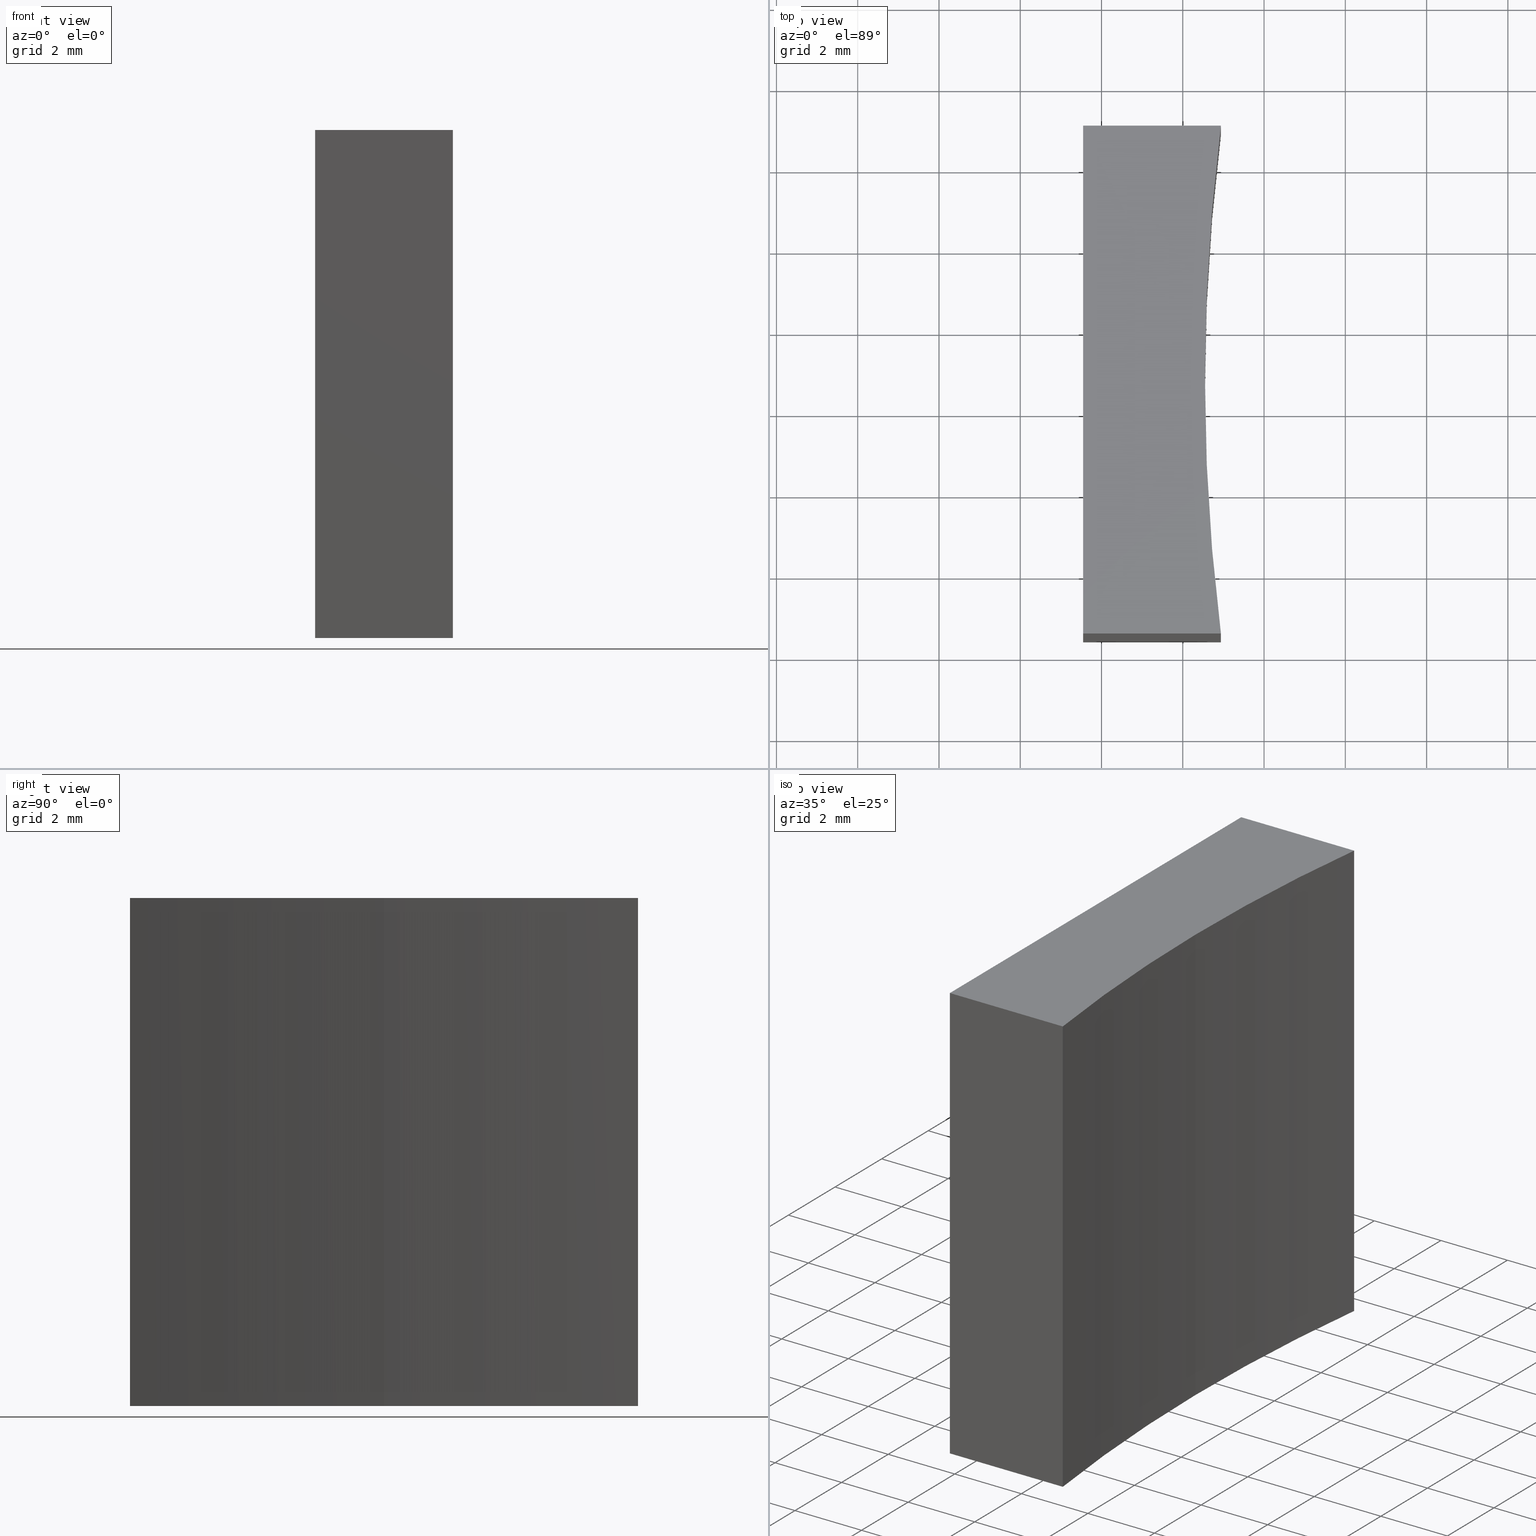
[diagram: canonical four-view strip — front | top / right | iso, engineering-drawing reading convention]
A machine part, canonical four-view strip (front | top / right | iso — engineering-drawing reading convention). The complete STEP part file that produces these views, byte-faithful:
ISO-10303-21;
HEADER;
FILE_DESCRIPTION (( 'STEP AP214' ),
    '1' );
FILE_NAME ('270014.STEP',
    '2019-07-22T03:13:36',
    ( '' ),
    ( '' ),
    'SwSTEP 2.0',
    'SolidWorks 2016',
    '' );
FILE_SCHEMA (( 'AUTOMOTIVE_DESIGN' ));
ENDSEC;

DATA;
#1 = APPLICATION_PROTOCOL_DEFINITION ( 'draft international standard', 'automotive_design', 1998, #104 ) ;
#2 =( LENGTH_UNIT ( ) NAMED_UNIT ( * ) SI_UNIT ( .MILLI., .METRE. ) );
#3 = PRESENTATION_LAYER_ASSIGNMENT (  '', '', ( #61 ) ) ;
#4 = VECTOR ( 'NONE', #154, 1000.000000000000000 ) ;
#5 = ORIENTED_EDGE ( 'NONE', *, *, #158, .T. ) ;
#6 = ADVANCED_BREP_SHAPE_REPRESENTATION ( '270014', ( #72, #127 ), #39 ) ;
#7 = ORIENTED_EDGE ( 'NONE', *, *, #136, .F. ) ;
#8 = CIRCLE ( 'NONE', #95, 49.99999999999998600 ) ;
#9 = EDGE_LOOP ( 'NONE', ( #134, #156, #152, #59, #146 ) ) ;
#10 = PRODUCT_DEFINITION ( 'δ֪', '', #42, #13 ) ;
#11 = ORIENTED_EDGE ( 'NONE', *, *, #191, .T. ) ;
#12 = PLANE ( 'NONE',  #52 ) ;
#13 = PRODUCT_DEFINITION_CONTEXT ( 'detailed design', #104, 'design' ) ;
#14 = CARTESIAN_POINT ( 'NONE',  ( 60.93849051950596200, 40.93901056168622400, 12.50000000000000000 ) ) ;
#15 = DIRECTION ( 'NONE',  ( 0.0000000000000000000, -1.000000000000000000, 0.0000000000000000000 ) ) ;
#16 =( NAMED_UNIT ( * ) SI_UNIT ( $, .STERADIAN. ) SOLID_ANGLE_UNIT ( ) );
#17 = VECTOR ( 'NONE', #94, 1000.000000000000000 ) ;
#18 = EDGE_LOOP ( 'NONE', ( #110, #75, #194, #60, #97 ) ) ;
#19 = AXIS2_PLACEMENT_3D ( 'NONE', #68, #20, #163 ) ;
#20 = DIRECTION ( 'NONE',  ( -0.0000000000000000000, -0.0000000000000000000, -1.000000000000000000 ) ) ;
#21 = DIRECTION ( 'NONE',  ( -0.0000000000000000000, -0.0000000000000000000, -1.000000000000000000 ) ) ;
#22 = VERTEX_POINT ( 'NONE', #175 ) ;
#23 = SURFACE_STYLE_USAGE ( .BOTH. , #187 ) ;
#24 = MECHANICAL_DESIGN_GEOMETRIC_PRESENTATION_REPRESENTATION (  '', ( #171 ), #186 ) ;
#25 = ORIENTED_EDGE ( 'NONE', *, *, #205, .F. ) ;
#26 = VECTOR ( 'NONE', #233, 1000.000000000000000 ) ;
#27 = PRESENTATION_LAYER_ASSIGNMENT (  '', '', ( #171 ) ) ;
#28 = DIRECTION ( 'NONE',  ( 1.000000000000000000, 2.045566327771736600E-015, 0.0000000000000000000 ) ) ;
#29 = CARTESIAN_POINT ( 'NONE',  ( 57.54632776745975800, 40.93901056168621700, 0.0000000000000000000 ) ) ;
#30 = VERTEX_POINT ( 'NONE', #174 ) ;
#31 = EDGE_CURVE ( 'NONE', #30, #111, #107, .T. ) ;
#32 = EDGE_CURVE ( 'NONE', #199, #161, #126, .T. ) ;
#33 = COLOUR_RGB ( '',1.000000000000000000, 1.000000000000000000, 1.000000000000000000 ) ;
#34 = SURFACE_SIDE_STYLE ('',( #225 ) ) ;
#35 = CARTESIAN_POINT ( 'NONE',  ( 110.5463276019670400, 34.68901056168623100, 0.0000000000000000000 ) ) ;
#36 = CARTESIAN_POINT ( 'NONE',  ( 57.54632776745975800, 28.43901056168622100, 12.50000000000000000 ) ) ;
#37 = DIRECTION ( 'NONE',  ( -0.0000000000000000000, -0.0000000000000000000, -1.000000000000000000 ) ) ;
#38 = ADVANCED_FACE ( 'NONE', ( #148 ), #12, .F. ) ;
#39 =( GEOMETRIC_REPRESENTATION_CONTEXT ( 3 ) GLOBAL_UNCERTAINTY_ASSIGNED_CONTEXT ( ( #238 ) ) GLOBAL_UNIT_ASSIGNED_CONTEXT ( ( #2, #125, #218 ) ) REPRESENTATION_CONTEXT ( 'NONE', 'WORKASPACE' ) );
#40 = DIRECTION ( 'NONE',  ( -0.0000000000000000000, -0.0000000000000000000, -1.000000000000000000 ) ) ;
#41 = VECTOR ( 'NONE', #40, 1000.000000000000000 ) ;
#42 = PRODUCT_DEFINITION_FORMATION_WITH_SPECIFIED_SOURCE ( '�κ�', '', #207, .NOT_KNOWN. ) ;
#43 = EDGE_LOOP ( 'NONE', ( #236, #100, #211, #209 ) ) ;
#44 = AXIS2_PLACEMENT_3D ( 'NONE', #56, #89, #167 ) ;
#45 = DIRECTION ( 'NONE',  ( 1.000000000000000000, 0.0000000000000000000, 0.0000000000000000000 ) ) ;
#46 = VECTOR ( 'NONE', #177, 1000.000000000000000 ) ;
#47 = DIRECTION ( 'NONE',  ( 1.000000000000000000, 0.0000000000000000000, 0.0000000000000000000 ) ) ;
#48 = DIRECTION ( 'NONE',  ( -0.0000000000000000000, -0.0000000000000000000, -1.000000000000000000 ) ) ;
#49 = CARTESIAN_POINT ( 'NONE',  ( 60.54632760196703600, 34.68901056168623100, 0.0000000000000000000 ) ) ;
#50 =( LENGTH_UNIT ( ) NAMED_UNIT ( * ) SI_UNIT ( .MILLI., .METRE. ) );
#51 = ADVANCED_FACE ( 'NONE', ( #118 ), #153, .F. ) ;
#52 = AXIS2_PLACEMENT_3D ( 'NONE', #227, #47, #132 ) ;
#53 = LINE ( 'NONE', #102, #169 ) ;
#54 = VERTEX_POINT ( 'NONE', #62 ) ;
#55 = CARTESIAN_POINT ( 'NONE',  ( 57.54632776745975800, 28.43901056168622100, 12.50000000000000000 ) ) ;
#56 = CARTESIAN_POINT ( 'NONE',  ( 110.5463276019670400, 34.68901056168623100, 12.50000000000000000 ) ) ;
#57 = DIRECTION ( 'NONE',  ( 1.000000000000000000, 0.0000000000000000000, 0.0000000000000000000 ) ) ;
#58 = CYLINDRICAL_SURFACE ( 'NONE', #74, 49.99999999999999300 ) ;
#59 = ORIENTED_EDGE ( 'NONE', *, *, #122, .F. ) ;
#60 = ORIENTED_EDGE ( 'NONE', *, *, #77, .T. ) ;
#61 = STYLED_ITEM ( 'NONE', ( #109 ), #72 ) ;
#62 = CARTESIAN_POINT ( 'NONE',  ( 57.54632776745975800, 40.93901056168621700, 12.50000000000000000 ) ) ;
#63 = ORIENTED_EDGE ( 'NONE', *, *, #178, .T. ) ;
#64 = DIRECTION ( 'NONE',  ( 1.000000000000000000, 0.0000000000000000000, 0.0000000000000000000 ) ) ;
#65 = EDGE_CURVE ( 'NONE', #22, #123, #121, .T. ) ;
#66 = LINE ( 'NONE', #116, #160 ) ;
#67 = ORIENTED_EDGE ( 'NONE', *, *, #31, .F. ) ;
#68 = CARTESIAN_POINT ( 'NONE',  ( 110.5463276019670400, 34.68901056168623100, 0.0000000000000000000 ) ) ;
#69 = SURFACE_STYLE_USAGE ( .BOTH. , #34 ) ;
#70 = ORIENTED_EDGE ( 'NONE', *, *, #180, .T. ) ;
#71 = FILL_AREA_STYLE ('',( #147 ) ) ;
#72 = MANIFOLD_SOLID_BREP ( '͹̨-����1', #210 ) ;
#73 = DIRECTION ( 'NONE',  ( 1.000000000000000000, 0.0000000000000000000, -0.0000000000000000000 ) ) ;
#74 = AXIS2_PLACEMENT_3D ( 'NONE', #185, #21, #108 ) ;
#75 = ORIENTED_EDGE ( 'NONE', *, *, #31, .T. ) ;
#76 = SHAPE_DEFINITION_REPRESENTATION ( #131, #6 ) ;
#77 = EDGE_CURVE ( 'NONE', #92, #181, #8, .T. ) ;
#78 = FACE_OUTER_BOUND ( 'NONE', #43, .T. ) ;
#79 = UNCERTAINTY_MEASURE_WITH_UNIT (LENGTH_MEASURE( 1.000000000000000100E-005 ), #50, 'distance_accuracy_value', 'NONE');
#80 = VECTOR ( 'NONE', #215, 1000.000000000000000 ) ;
#81 = AXIS2_PLACEMENT_3D ( 'NONE', #55, #84, #162 ) ;
#82 = CARTESIAN_POINT ( 'NONE',  ( 60.93849051950595500, 28.43901056168625600, 12.50000000000000000 ) ) ;
#83 = CARTESIAN_POINT ( 'NONE',  ( 60.93849051950595500, 28.43901056168625600, 0.0000000000000000000 ) ) ;
#84 = DIRECTION ( 'NONE',  ( -5.113915819429341200E-015, 1.000000000000000000, 0.0000000000000000000 ) ) ;
#85 = CARTESIAN_POINT ( 'NONE',  ( 110.5463276019670400, 34.68901056168623100, 12.50000000000000000 ) ) ;
#86 = LINE ( 'NONE', #139, #228 ) ;
#87 = ORIENTED_EDGE ( 'NONE', *, *, #193, .F. ) ;
#88 = APPLICATION_PROTOCOL_DEFINITION ( 'draft international standard', 'automotive_design', 1998, #183 ) ;
#89 = DIRECTION ( 'NONE',  ( -0.0000000000000000000, -0.0000000000000000000, -1.000000000000000000 ) ) ;
#90 = EDGE_CURVE ( 'NONE', #181, #54, #53, .T. ) ;
#91 = ORIENTED_EDGE ( 'NONE', *, *, #178, .F. ) ;
#92 = VERTEX_POINT ( 'NONE', #120 ) ;
#93 = ORIENTED_EDGE ( 'NONE', *, *, #136, .T. ) ;
#94 = DIRECTION ( 'NONE',  ( 1.000000000000000000, 5.113915819429341200E-015, 0.0000000000000000000 ) ) ;
#95 = AXIS2_PLACEMENT_3D ( 'NONE', #85, #159, #64 ) ;
#96 = CARTESIAN_POINT ( 'NONE',  ( 57.54632776745975800, 28.43901056168622100, 12.50000000000000000 ) ) ;
#97 = ORIENTED_EDGE ( 'NONE', *, *, #90, .T. ) ;
#98 = DIRECTION ( 'NONE',  ( 0.0000000000000000000, 0.0000000000000000000, 1.000000000000000000 ) ) ;
#99 = AXIS2_PLACEMENT_3D ( 'NONE', #172, #113, #28 ) ;
#100 = ORIENTED_EDGE ( 'NONE', *, *, #229, .F. ) ;
#101 = CARTESIAN_POINT ( 'NONE',  ( 60.93849051950595500, 28.43901056168625600, 12.50000000000000000 ) ) ;
#102 = CARTESIAN_POINT ( 'NONE',  ( 57.54632776745975800, 40.93901056168621700, 12.50000000000000000 ) ) ;
#103 =( NAMED_UNIT ( * ) PLANE_ANGLE_UNIT ( ) SI_UNIT ( $, .RADIAN. ) );
#104 = APPLICATION_CONTEXT ( 'automotive_design' ) ;
#105 = ADVANCED_FACE ( 'NONE', ( #192 ), #200, .F. ) ;
#106 = CYLINDRICAL_SURFACE ( 'NONE', #140, 49.99999999999999300 ) ;
#107 = LINE ( 'NONE', #96, #17 ) ;
#108 = DIRECTION ( 'NONE',  ( -1.000000000000000000, 0.0000000000000000000, 0.0000000000000000000 ) ) ;
#109 = PRESENTATION_STYLE_ASSIGNMENT (( #69 ) ) ;
#110 = ORIENTED_EDGE ( 'NONE', *, *, #166, .T. ) ;
#111 = VERTEX_POINT ( 'NONE', #101 ) ;
#112 = COLOUR_RGB ( '',1.000000000000000000, 1.000000000000000000, 1.000000000000000000 ) ;
#113 = DIRECTION ( 'NONE',  ( 2.045566327771736600E-015, -1.000000000000000000, 0.0000000000000000000 ) ) ;
#114 = EDGE_LOOP ( 'NONE', ( #165, #11, #173, #7 ) ) ;
#115 = PRODUCT_RELATED_PRODUCT_CATEGORY ( 'part', '', ( #207 ) ) ;
#116 = CARTESIAN_POINT ( 'NONE',  ( 57.54632776745975800, 28.43901056168622100, 0.0000000000000000000 ) ) ;
#117 = DIRECTION ( 'NONE',  ( 1.000000000000000000, 0.0000000000000000000, -0.0000000000000000000 ) ) ;
#118 = FACE_OUTER_BOUND ( 'NONE', #151, .T. ) ;
#119 = CARTESIAN_POINT ( 'NONE',  ( 60.93849051950596200, 40.93901056168622400, 12.50000000000000000 ) ) ;
#120 = CARTESIAN_POINT ( 'NONE',  ( 60.54632760196703600, 34.68901056168623100, 12.50000000000000000 ) ) ;
#121 = LINE ( 'NONE', #29, #4 ) ;
#122 = EDGE_CURVE ( 'NONE', #161, #22, #208, .T. ) ;
#123 = VERTEX_POINT ( 'NONE', #216 ) ;
#124 = DIRECTION ( 'NONE',  ( 0.0000000000000000000, 0.0000000000000000000, 1.000000000000000000 ) ) ;
#125 =( NAMED_UNIT ( * ) PLANE_ANGLE_UNIT ( ) SI_UNIT ( $, .RADIAN. ) );
#126 = CIRCLE ( 'NONE', #226, 49.99999999999998600 ) ;
#127 = AXIS2_PLACEMENT_3D ( 'NONE', #164, #203, #57 ) ;
#128 = LINE ( 'NONE', #82, #80 ) ;
#129 = AXIS2_PLACEMENT_3D ( 'NONE', #213, #98, #117 ) ;
#130 = FACE_OUTER_BOUND ( 'NONE', #9, .T. ) ;
#131 = PRODUCT_DEFINITION_SHAPE ( 'NONE', 'NONE',  #10 ) ;
#132 = DIRECTION ( 'NONE',  ( 0.0000000000000000000, 0.0000000000000000000, -1.000000000000000000 ) ) ;
#133 = LINE ( 'NONE', #36, #46 ) ;
#134 = ORIENTED_EDGE ( 'NONE', *, *, #180, .F. ) ;
#135 = AXIS2_PLACEMENT_3D ( 'NONE', #35, #124, #73 ) ;
#136 = EDGE_CURVE ( 'NONE', #181, #22, #214, .T. ) ;
#137 = LINE ( 'NONE', #206, #41 ) ;
#138 = DIRECTION ( 'NONE',  ( 1.000000000000000000, 5.113915819429341200E-015, 0.0000000000000000000 ) ) ;
#139 = CARTESIAN_POINT ( 'NONE',  ( 60.54632760196703600, 34.68901056168623100, 12.50000000000000000 ) ) ;
#140 = AXIS2_PLACEMENT_3D ( 'NONE', #220, #204, #144 ) ;
#141 = CARTESIAN_POINT ( 'NONE',  ( 57.54632776745975800, 34.68901056168621700, 0.0000000000000000000 ) ) ;
#142 = VECTOR ( 'NONE', #15, 1000.000000000000000 ) ;
#143 = FILL_AREA_STYLE_COLOUR ( '', #112 ) ;
#144 = DIRECTION ( 'NONE',  ( -1.000000000000000000, 0.0000000000000000000, 0.0000000000000000000 ) ) ;
#145 = MECHANICAL_DESIGN_GEOMETRIC_PRESENTATION_REPRESENTATION (  '', ( #61 ), #224 ) ;
#146 = ORIENTED_EDGE ( 'NONE', *, *, #32, .F. ) ;
#147 = FILL_AREA_STYLE_COLOUR ( '', #33 ) ;
#148 = FACE_OUTER_BOUND ( 'NONE', #198, .T. ) ;
#149 = ORIENTED_EDGE ( 'NONE', *, *, #166, .F. ) ;
#150 = VERTEX_POINT ( 'NONE', #182 ) ;
#151 = EDGE_LOOP ( 'NONE', ( #170, #25, #223, #93 ) ) ;
#152 = ORIENTED_EDGE ( 'NONE', *, *, #65, .F. ) ;
#153 = PLANE ( 'NONE',  #99 ) ;
#154 = DIRECTION ( 'NONE',  ( -1.000000000000000000, -2.045566327771736600E-015, -0.0000000000000000000 ) ) ;
#155 = UNCERTAINTY_MEASURE_WITH_UNIT (LENGTH_MEASURE( 1.000000000000000100E-005 ), #221, 'distance_accuracy_value', 'NONE');
#156 = ORIENTED_EDGE ( 'NONE', *, *, #158, .F. ) ;
#157 = CARTESIAN_POINT ( 'NONE',  ( 110.5463276019670400, 34.68901056168623100, 0.0000000000000000000 ) ) ;
#158 = EDGE_CURVE ( 'NONE', #123, #150, #168, .T. ) ;
#159 = DIRECTION ( 'NONE',  ( -0.0000000000000000000, -0.0000000000000000000, -1.000000000000000000 ) ) ;
#160 = VECTOR ( 'NONE', #138, 1000.000000000000000 ) ;
#161 = VERTEX_POINT ( 'NONE', #49 ) ;
#162 = DIRECTION ( 'NONE',  ( -1.000000000000000000, -5.113915819429341200E-015, 0.0000000000000000000 ) ) ;
#163 = DIRECTION ( 'NONE',  ( 1.000000000000000000, 0.0000000000000000000, 0.0000000000000000000 ) ) ;
#164 = CARTESIAN_POINT ( 'NONE',  ( 0.0000000000000000000, 0.0000000000000000000, 0.0000000000000000000 ) ) ;
#165 = ORIENTED_EDGE ( 'NONE', *, *, #77, .F. ) ;
#166 = EDGE_CURVE ( 'NONE', #54, #30, #188, .T. ) ;
#167 = DIRECTION ( 'NONE',  ( 1.000000000000000000, 0.0000000000000000000, 0.0000000000000000000 ) ) ;
#168 = LINE ( 'NONE', #141, #26 ) ;
#169 = VECTOR ( 'NONE', #179, 1000.000000000000000 ) ;
#170 = ORIENTED_EDGE ( 'NONE', *, *, #65, .T. ) ;
#171 = STYLED_ITEM ( 'NONE', ( #195 ), #6 ) ;
#172 = CARTESIAN_POINT ( 'NONE',  ( 57.54632776745975800, 40.93901056168621700, 12.50000000000000000 ) ) ;
#173 = ORIENTED_EDGE ( 'NONE', *, *, #122, .T. ) ;
#174 = CARTESIAN_POINT ( 'NONE',  ( 57.54632776745975800, 28.43901056168622100, 12.50000000000000000 ) ) ;
#175 = CARTESIAN_POINT ( 'NONE',  ( 60.93849051950596200, 40.93901056168622400, 0.0000000000000000000 ) ) ;
#176 = FACE_OUTER_BOUND ( 'NONE', #114, .T. ) ;
#177 = DIRECTION ( 'NONE',  ( -0.0000000000000000000, -0.0000000000000000000, -1.000000000000000000 ) ) ;
#178 = EDGE_CURVE ( 'NONE', #30, #150, #133, .T. ) ;
#179 = DIRECTION ( 'NONE',  ( -1.000000000000000000, -2.045566327771736600E-015, -0.0000000000000000000 ) ) ;
#180 = EDGE_CURVE ( 'NONE', #150, #199, #66, .T. ) ;
#181 = VERTEX_POINT ( 'NONE', #14 ) ;
#182 = CARTESIAN_POINT ( 'NONE',  ( 57.54632776745975800, 28.43901056168622100, 0.0000000000000000000 ) ) ;
#183 = APPLICATION_CONTEXT ( 'automotive_design' ) ;
#184 = ADVANCED_FACE ( 'NONE', ( #235 ), #230, .T. ) ;
#185 = CARTESIAN_POINT ( 'NONE',  ( 110.5463276019670400, 34.68901056168623100, 12.50000000000000000 ) ) ;
#186 =( GEOMETRIC_REPRESENTATION_CONTEXT ( 3 ) GLOBAL_UNCERTAINTY_ASSIGNED_CONTEXT ( ( #155 ) ) GLOBAL_UNIT_ASSIGNED_CONTEXT ( ( #221, #103, #239 ) ) REPRESENTATION_CONTEXT ( 'NONE', 'WORKASPACE' ) );
#187 = SURFACE_SIDE_STYLE ('',( #222 ) ) ;
#188 = LINE ( 'NONE', #202, #142 ) ;
#189 = VECTOR ( 'NONE', #37, 1000.000000000000000 ) ;
#190 = ORIENTED_EDGE ( 'NONE', *, *, #205, .T. ) ;
#191 = EDGE_CURVE ( 'NONE', #92, #161, #86, .T. ) ;
#192 = FACE_OUTER_BOUND ( 'NONE', #196, .T. ) ;
#193 = EDGE_CURVE ( 'NONE', #111, #199, #128, .T. ) ;
#194 = ORIENTED_EDGE ( 'NONE', *, *, #229, .T. ) ;
#195 = PRESENTATION_STYLE_ASSIGNMENT (( #23 ) ) ;
#196 = EDGE_LOOP ( 'NONE', ( #70, #87, #67, #63 ) ) ;
#197 = DIRECTION ( 'NONE',  ( -0.0000000000000000000, -0.0000000000000000000, -1.000000000000000000 ) ) ;
#198 = EDGE_LOOP ( 'NONE', ( #5, #91, #149, #190 ) ) ;
#199 = VERTEX_POINT ( 'NONE', #83 ) ;
#200 = PLANE ( 'NONE',  #81 ) ;
#201 = ADVANCED_FACE ( 'NONE', ( #130 ), #231, .F. ) ;
#202 = CARTESIAN_POINT ( 'NONE',  ( 57.54632776745975800, 34.68901056168621700, 12.50000000000000000 ) ) ;
#203 = DIRECTION ( 'NONE',  ( 0.0000000000000000000, 0.0000000000000000000, 1.000000000000000000 ) ) ;
#204 = DIRECTION ( 'NONE',  ( -0.0000000000000000000, -0.0000000000000000000, -1.000000000000000000 ) ) ;
#205 = EDGE_CURVE ( 'NONE', #54, #123, #137, .T. ) ;
#206 = CARTESIAN_POINT ( 'NONE',  ( 57.54632776745975800, 40.93901056168621700, 12.50000000000000000 ) ) ;
#207 = PRODUCT ( '270014', '270014', '', ( #219 ) ) ;
#208 = CIRCLE ( 'NONE', #19, 49.99999999999998600 ) ;
#209 = ORIENTED_EDGE ( 'NONE', *, *, #32, .T. ) ;
#210 = CLOSED_SHELL ( 'NONE', ( #232, #105, #234, #51, #38, #184, #201 ) ) ;
#211 = ORIENTED_EDGE ( 'NONE', *, *, #193, .T. ) ;
#212 = CIRCLE ( 'NONE', #44, 49.99999999999998600 ) ;
#213 = CARTESIAN_POINT ( 'NONE',  ( 110.5463276019670400, 34.68901056168623100, 12.50000000000000000 ) ) ;
#214 = LINE ( 'NONE', #119, #189 ) ;
#215 = DIRECTION ( 'NONE',  ( -0.0000000000000000000, -0.0000000000000000000, -1.000000000000000000 ) ) ;
#216 = CARTESIAN_POINT ( 'NONE',  ( 57.54632776745975800, 40.93901056168621700, 0.0000000000000000000 ) ) ;
#217 = FILL_AREA_STYLE ('',( #143 ) ) ;
#218 =( NAMED_UNIT ( * ) SI_UNIT ( $, .STERADIAN. ) SOLID_ANGLE_UNIT ( ) );
#219 = PRODUCT_CONTEXT ( 'NONE', #183, 'mechanical' ) ;
#220 = CARTESIAN_POINT ( 'NONE',  ( 110.5463276019670400, 34.68901056168623100, 12.50000000000000000 ) ) ;
#221 =( LENGTH_UNIT ( ) NAMED_UNIT ( * ) SI_UNIT ( .MILLI., .METRE. ) );
#222 = SURFACE_STYLE_FILL_AREA ( #71 ) ;
#223 = ORIENTED_EDGE ( 'NONE', *, *, #90, .F. ) ;
#224 =( GEOMETRIC_REPRESENTATION_CONTEXT ( 3 ) GLOBAL_UNCERTAINTY_ASSIGNED_CONTEXT ( ( #79 ) ) GLOBAL_UNIT_ASSIGNED_CONTEXT ( ( #50, #237, #16 ) ) REPRESENTATION_CONTEXT ( 'NONE', 'WORKASPACE' ) );
#225 = SURFACE_STYLE_FILL_AREA ( #217 ) ;
#226 = AXIS2_PLACEMENT_3D ( 'NONE', #157, #48, #45 ) ;
#227 = CARTESIAN_POINT ( 'NONE',  ( 57.54632776745975800, 34.68901056168621700, 12.50000000000000000 ) ) ;
#228 = VECTOR ( 'NONE', #197, 1000.000000000000000 ) ;
#229 = EDGE_CURVE ( 'NONE', #111, #92, #212, .T. ) ;
#230 = PLANE ( 'NONE',  #129 ) ;
#231 = PLANE ( 'NONE',  #135 ) ;
#232 = ADVANCED_FACE ( 'NONE', ( #176 ), #106, .F. ) ;
#233 = DIRECTION ( 'NONE',  ( -0.0000000000000000000, -1.000000000000000000, -0.0000000000000000000 ) ) ;
#234 = ADVANCED_FACE ( 'NONE', ( #78 ), #58, .F. ) ;
#235 = FACE_OUTER_BOUND ( 'NONE', #18, .T. ) ;
#236 = ORIENTED_EDGE ( 'NONE', *, *, #191, .F. ) ;
#237 =( NAMED_UNIT ( * ) PLANE_ANGLE_UNIT ( ) SI_UNIT ( $, .RADIAN. ) );
#238 = UNCERTAINTY_MEASURE_WITH_UNIT (LENGTH_MEASURE( 1.000000000000000100E-005 ), #2, 'distance_accuracy_value', 'NONE');
#239 =( NAMED_UNIT ( * ) SI_UNIT ( $, .STERADIAN. ) SOLID_ANGLE_UNIT ( ) );
ENDSEC;
END-ISO-10303-21;
